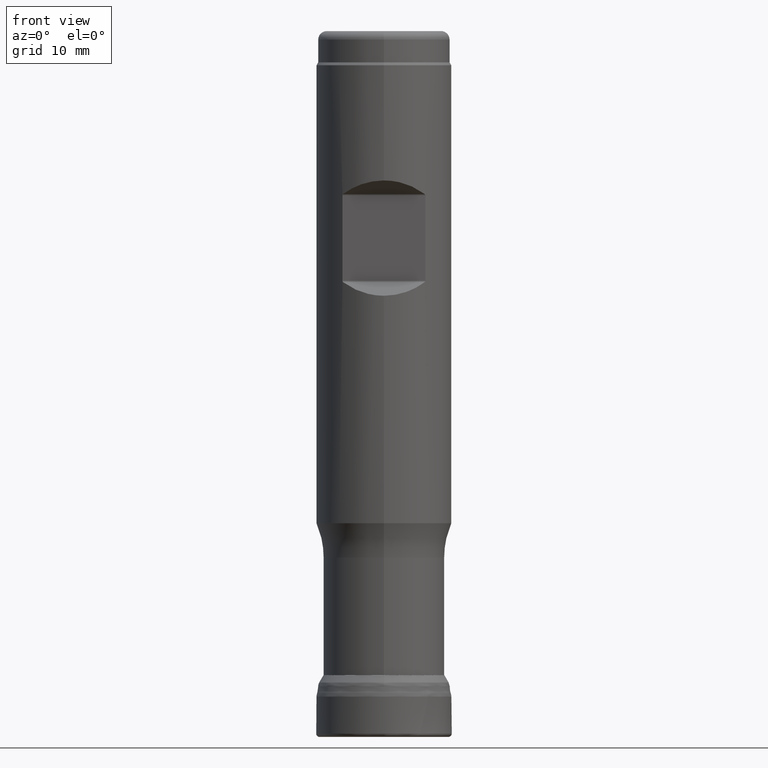
[diagram: clean part render]
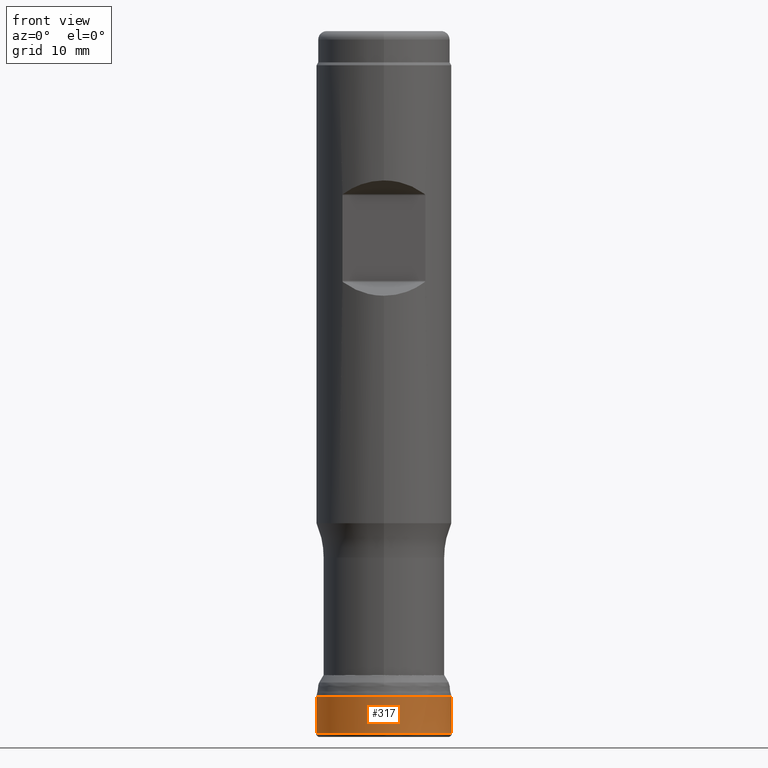
[diagram: same view with one face highlighted and labeled with its STEP entity id]
A machine part, front view. The second image highlights one B-rep face of the part: STEP entity #317.
In plain terms, the highlighted face is a SurfaceOfRevolution surface.
Its self-contained STEP definition (entity closure, byte-faithful):
#125=SURFACE_OF_REVOLUTION('',#694,#146);
#146=AXIS1_PLACEMENT('',#1439,#919);
#268=FACE_BOUND('',#409,.T.);
#269=FACE_BOUND('',#410,.T.);
#317=ADVANCED_FACE('',(#268,#269),#125,.F.);
#409=EDGE_LOOP('',(#511));
#410=EDGE_LOOP('',(#512));
#511=ORIENTED_EDGE('',*,*,#614,.T.);
#512=ORIENTED_EDGE('',*,*,#615,.F.);
#563=VERTEX_POINT('',#1412);
#564=VERTEX_POINT('',#1426);
#614=EDGE_CURVE('',#563,#563,#653,.T.);
#615=EDGE_CURVE('',#564,#564,#654,.T.);
#653=CIRCLE('',#759,7.93749995931827);
#654=CIRCLE('',#760,7.93749982296869);
#694=B_SPLINE_CURVE_WITH_KNOTS('',3,(#1427,#1428,#1429,#1430,#1431,#1432,
#1433,#1434,#1435,#1436,#1437,#1438),.UNSPECIFIED.,.F.,.F.,(4,1,1,1,1,1,
1,1,1,4),(0.,0.221418157861957,0.365983083750147,0.510548009638337,0.655112935526528,
0.799677861414718,0.871960324358813,0.90810155583086,0.944242787302908,
1.),.UNSPECIFIED.);
#759=AXIS2_PLACEMENT_3D('',#1411,#914,#915);
#760=AXIS2_PLACEMENT_3D('',#1425,#917,#918);
#914=DIRECTION('',(0.,1.17145536458252E-15,1.));
#915=DIRECTION('',(0.,-1.,1.17469464329624E-15));
#917=DIRECTION('',(0.,1.17145536458252E-15,1.));
#918=DIRECTION('',(0.,-1.,1.20201314402096E-15));
#919=DIRECTION('',(0.,1.17145536458252E-15,1.));
#1411=CARTESIAN_POINT('',(0.,4.58529845001535E-16,0.391418963850102));
#1412=CARTESIAN_POINT('',(0.,-7.93749995931827,0.391418963850111));
#1425=CARTESIAN_POINT('',(0.,5.51349106216584E-15,4.70653106286359));
#1426=CARTESIAN_POINT('',(0.,-7.93749982296868,4.7065310628636));
#1427=CARTESIAN_POINT('',(7.93123930330439,-0.315197340914594,4.70653080548613));
#1428=CARTESIAN_POINT('',(7.93388877779605,-0.40047822780903,4.38825515507297));
#1429=CARTESIAN_POINT('',(7.93448699360784,-0.541448533082415,3.86214546366884));
#1430=CARTESIAN_POINT('',(7.92290818975563,-0.738074494044335,3.12833761111098));
#1431=CARTESIAN_POINT('',(7.90433081648445,-0.905055097401499,2.50517472614973));
#1432=CARTESIAN_POINT('',(7.87812436556731,-1.07197039970399,1.88226298897884));
#1433=CARTESIAN_POINT('',(7.85280021237244,-1.21094613398408,1.36329457485894));
#1434=CARTESIAN_POINT('',(7.83390254997651,-1.30847809300521,1.00013788831307));
#1435=CARTESIAN_POINT('',(7.82280873127314,-1.36371503746616,0.792525973773198));
#1436=CARTESIAN_POINT('',(7.81246849865266,-1.4142807936732,0.608911648888004));
#1437=CARTESIAN_POINT('',(7.80760257246415,-1.43423205576361,0.473651994813039));
#1438=CARTESIAN_POINT('',(7.80478021546477,-1.44544504996464,0.391418963850103));
#1439=CARTESIAN_POINT('',(0.,0.,0.));